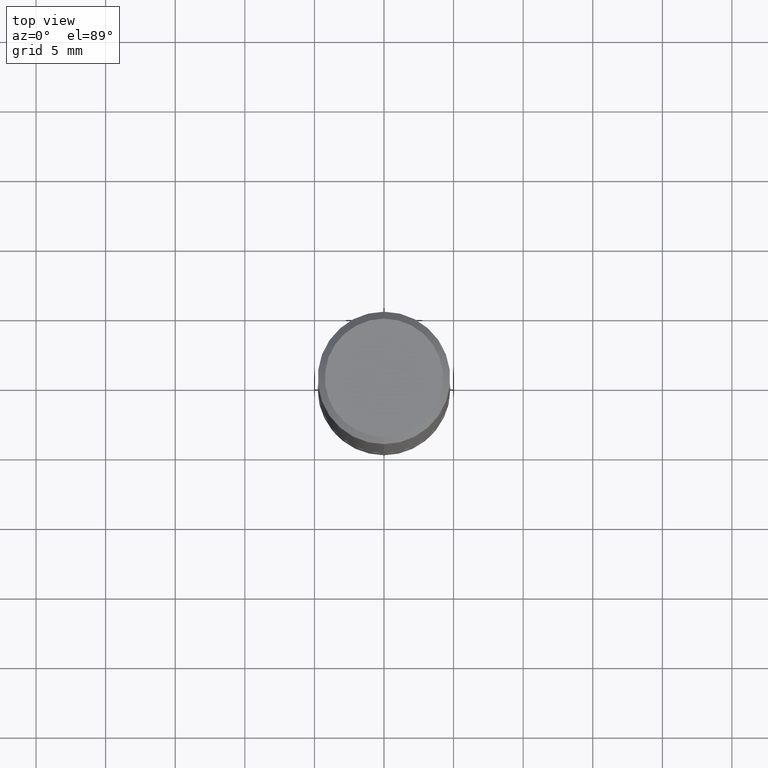
[diagram: clean part render]
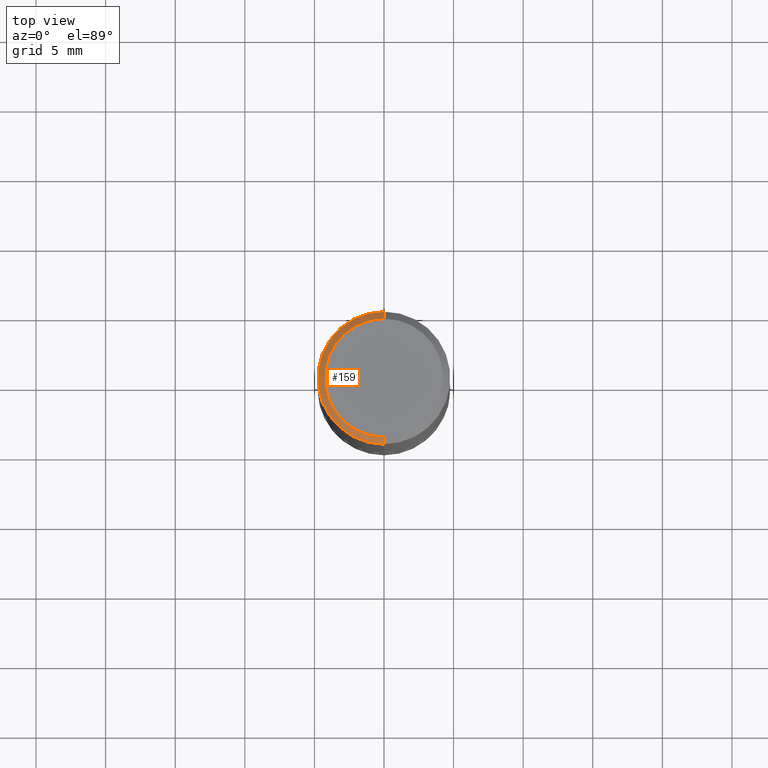
[diagram: same view with one face highlighted and labeled with its STEP entity id]
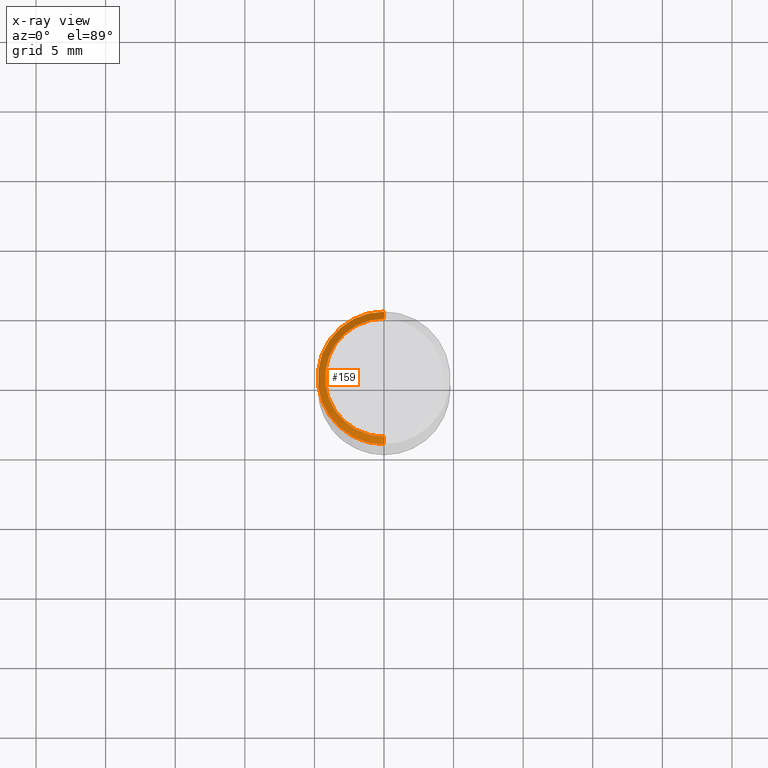
[diagram: x-ray of the same camera — body ghosted, the highlighted face saturated]
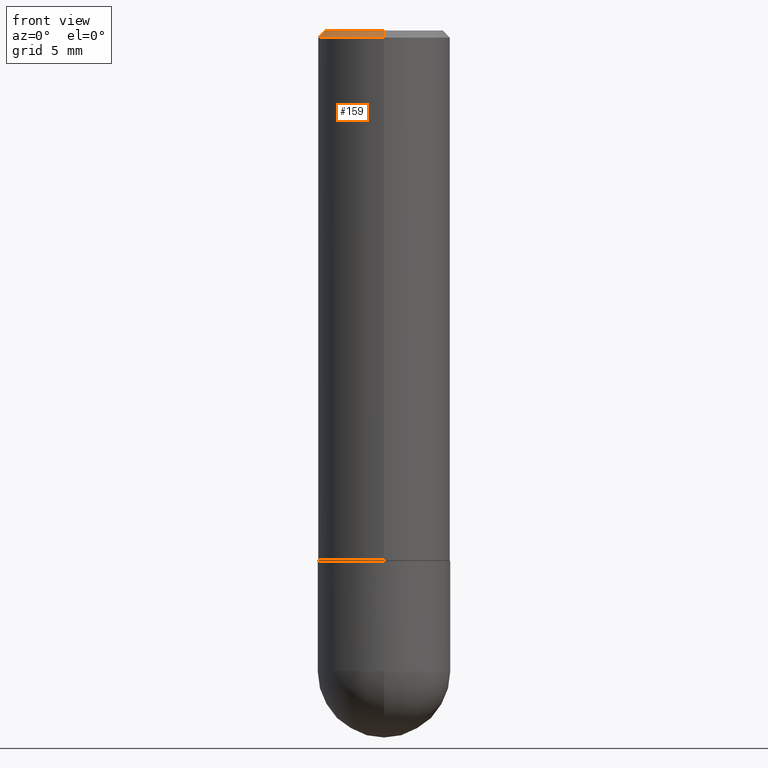
[diagram: same view with one face highlighted and labeled with its STEP entity id]
A machine part, top view. The second image highlights one B-rep face of the part: STEP entity #159.
The next image is the same camera in x-ray: the body ghosted, the highlighted face saturated — about 0% of this face is hidden behind the body in this view.
A second angle (front view) of the same face is appended — the face is thin or edge-on in the first view.
In plain terms, the highlighted conical surface has half-angle 45 deg.
Its self-contained STEP definition (entity closure, byte-faithful):
#18 = DIRECTION ( 'NONE',  ( 6.982962677686266711E-15, 1.000000000000000000, -3.483106191921935949E-15 ) ) ;
#37 = CARTESIAN_POINT ( 'NONE',  ( 4.888475545799278045E-31, -6.986488497148108654E-17, -0.02000000000000003858 ) ) ;
#43 = CARTESIAN_POINT ( 'NONE',  ( -1.286343374582161379E-15, -0.1875000000000000555, -0.01999999999999938632 ) ) ;
#46 = DIRECTION ( 'NONE',  ( 2.444237772899634714E-29, -3.493244248574047893E-15, -1.000000000000000000 ) ) ;
#64 = ORIENTED_EDGE ( 'NONE', *, *, #71, .T. ) ;
#71 = EDGE_CURVE ( 'NONE', #255, #83, #202, .T. ) ;
#75 = FACE_OUTER_BOUND ( 'NONE', #345, .T. ) ;
#77 = VERTEX_POINT ( 'NONE', #332 ) ;
#80 = LINE ( 'NONE', #43, #318 ) ;
#83 = VERTEX_POINT ( 'NONE', #167 ) ;
#87 = EDGE_CURVE ( 'NONE', #255, #263, #143, .T. ) ;
#109 = CARTESIAN_POINT ( 'NONE',  ( 4.888475545799278045E-31, -6.986488497148108654E-17, -0.02000000000000003858 ) ) ;
#129 = DIRECTION ( 'NONE',  ( -2.444237772899634714E-29, 3.493244248574047893E-15, 1.000000000000000000 ) ) ;
#143 = CIRCLE ( 'NONE', #365, 0.1674999999999999545 ) ;
#156 = CARTESIAN_POINT ( 'NONE',  ( 1.239475875289312499E-15, 0.1674999999999999545, -5.592120493156243082E-16 ) ) ;
#159 = ADVANCED_FACE ( 'NONE', ( #75 ), #256, .T. ) ;
#167 = CARTESIAN_POINT ( 'NONE',  ( 1.309305502066175205E-15, 0.1874999999999999167, -0.02000000000000069084 ) ) ;
#168 = CIRCLE ( 'NONE', #408, 0.1874999999999999722 ) ;
#169 = CARTESIAN_POINT ( 'NONE',  ( 1.309305502066175205E-15, 0.1874999999999999167, -0.02000000000000069084 ) ) ;
#192 = DIRECTION ( 'NONE',  ( -4.851104656540959542E-15, -0.7071067811865493491, -0.7071067811865457964 ) ) ;
#195 = DIRECTION ( 'NONE',  ( -6.982962677686266711E-15, -1.000000000000000000, 3.493244248574047893E-15 ) ) ;
#202 = LINE ( 'NONE', #169, #238 ) ;
#208 = ORIENTED_EDGE ( 'NONE', *, *, #387, .F. ) ;
#212 = AXIS2_PLACEMENT_3D ( 'NONE', #109, #46, #18 ) ;
#232 = DIRECTION ( 'NONE',  ( -2.444237772899634714E-29, 3.493244248574047893E-15, 1.000000000000000000 ) ) ;
#235 = CARTESIAN_POINT ( 'NONE',  ( -1.217738394604446442E-15, -0.1674999999999999545, 6.110247739566814046E-16 ) ) ;
#238 = VECTOR ( 'NONE', #323, 39.37007874015748143 ) ;
#248 = DIRECTION ( 'NONE',  ( -6.982962677686266711E-15, -1.000000000000000000, 3.483106191921935949E-15 ) ) ;
#255 = VERTEX_POINT ( 'NONE', #156 ) ;
#256 = CONICAL_SURFACE ( 'NONE', #212, 0.1874999999999999722, 0.7853981633974473908 ) ;
#263 = VERTEX_POINT ( 'NONE', #235 ) ;
#298 = EDGE_CURVE ( 'NONE', #83, #77, #168, .T. ) ;
#318 = VECTOR ( 'NONE', #192, 39.37007874015748143 ) ;
#323 = DIRECTION ( 'NONE',  ( 4.937700262164543309E-15, 0.7071067811865444641, -0.7071067811865506814 ) ) ;
#332 = CARTESIAN_POINT ( 'NONE',  ( -1.286343374582161379E-15, -0.1875000000000000555, -0.01999999999999938632 ) ) ;
#345 = EDGE_LOOP ( 'NONE', ( #208, #359, #64, #401 ) ) ;
#359 = ORIENTED_EDGE ( 'NONE', *, *, #87, .F. ) ;
#360 = CARTESIAN_POINT ( 'NONE',  ( -6.332130934225978108E-46, 9.049725117766187729E-32, 2.590636232052857901E-17 ) ) ;
#365 = AXIS2_PLACEMENT_3D ( 'NONE', #360, #232, #195 ) ;
#387 = EDGE_CURVE ( 'NONE', #263, #77, #80, .T. ) ;
#401 = ORIENTED_EDGE ( 'NONE', *, *, #298, .T. ) ;
#408 = AXIS2_PLACEMENT_3D ( 'NONE', #37, #129, #248 ) ;